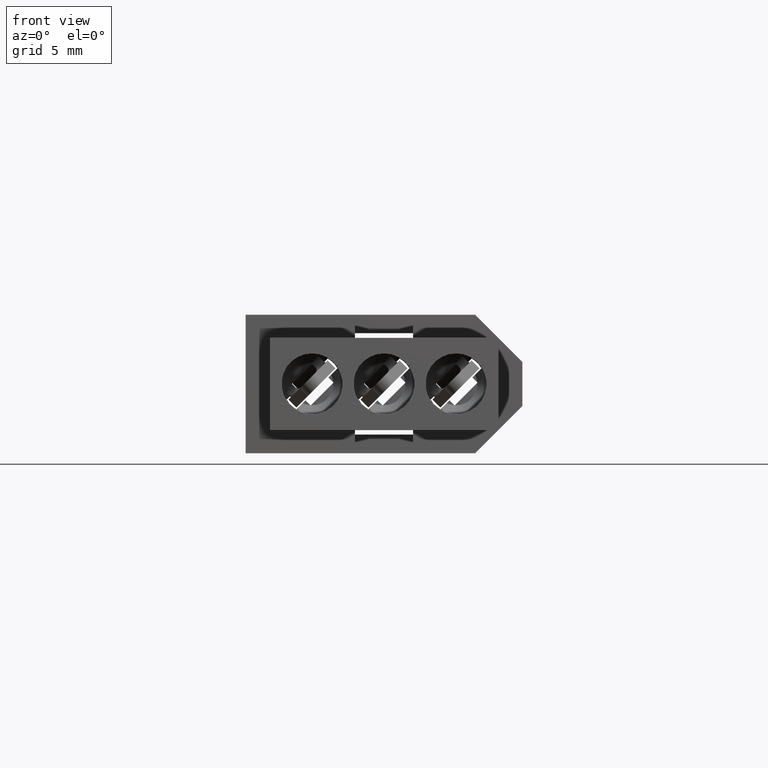
[diagram: clean part render]
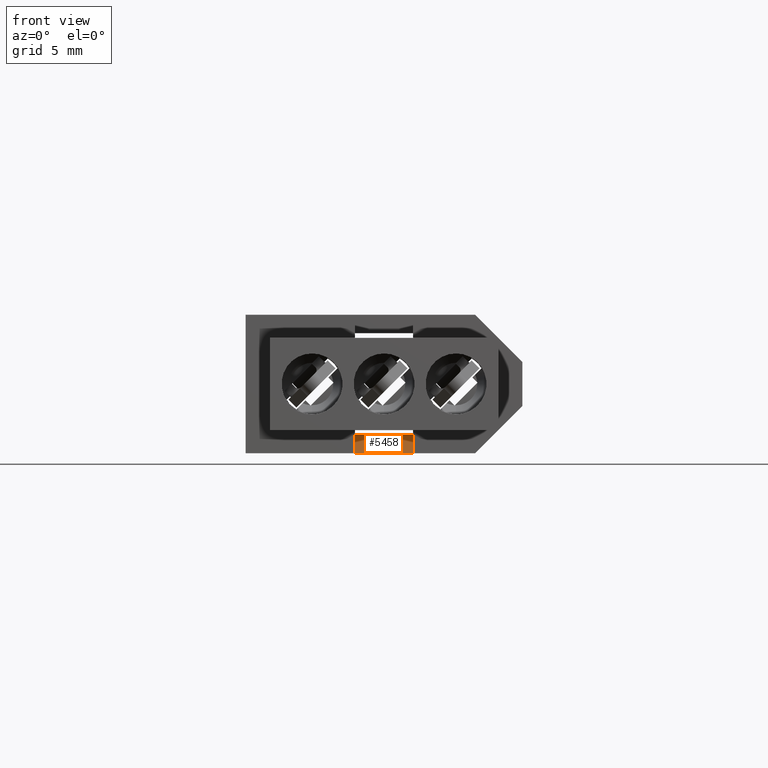
[diagram: same view with one face highlighted and labeled with its STEP entity id]
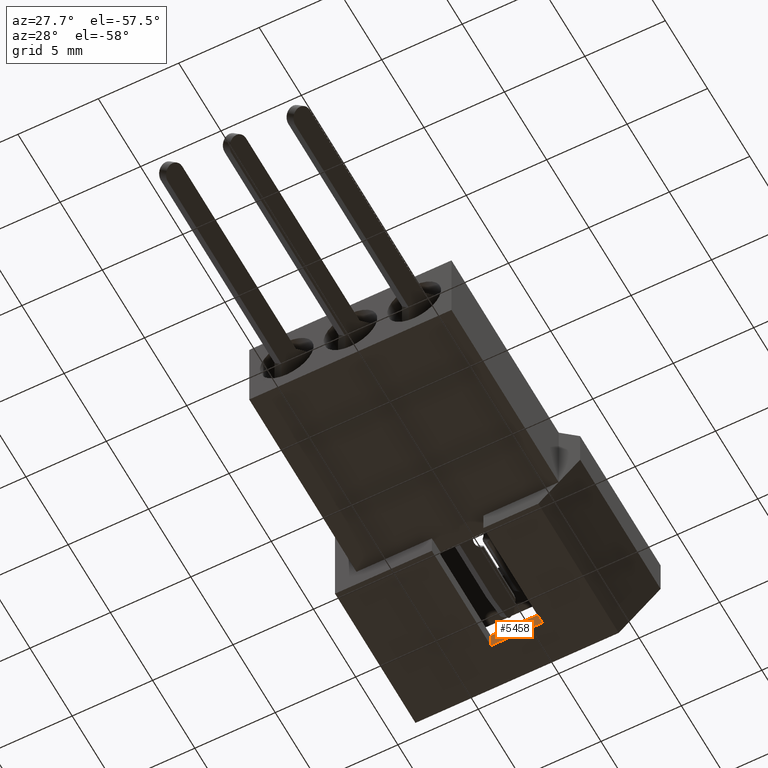
[diagram: same view with one face highlighted and labeled with its STEP entity id]
A machine part, front view. The second image highlights one B-rep face of the part: STEP entity #5458.
A second angle (auxiliary view) of the same face is appended — the face is thin or edge-on in the first view.
In plain terms, the highlighted planar face has unit normal (0, -1, 0).
Its self-contained STEP definition (entity closure, byte-faithful):
#11 = CARTESIAN_POINT ( 'NONE',  ( 5.562599999999996200, 6.984999999999999400, -3.809999999999999600 ) ) ;
#167 = EDGE_CURVE ( 'NONE', #2145, #5290, #358, .T. ) ;
#328 = CARTESIAN_POINT ( 'NONE',  ( 2.362199999999997400, 6.984999999999999400, -2.539999999999999600 ) ) ;
#358 = LINE ( 'NONE', #2122, #1166 ) ;
#381 = LINE ( 'NONE', #11, #2697 ) ;
#556 = VERTEX_POINT ( 'NONE', #6438 ) ;
#965 = DIRECTION ( 'NONE',  ( -0.0000000000000000000, -0.0000000000000000000, -1.000000000000000000 ) ) ;
#1103 = EDGE_CURVE ( 'NONE', #2145, #556, #4076, .T. ) ;
#1166 = VECTOR ( 'NONE', #2699, 1000.000000000000000 ) ;
#1219 = CARTESIAN_POINT ( 'NONE',  ( 5.562599999999996200, 6.984999999999999400, -3.809999999999999600 ) ) ;
#1386 = CARTESIAN_POINT ( 'NONE',  ( 5.562599999999996200, 6.984999999999999400, -2.794000000000000500 ) ) ;
#1940 = EDGE_LOOP ( 'NONE', ( #3968, #4157, #2496, #2518 ) ) ;
#1949 = VECTOR ( 'NONE', #965, 1000.000000000000000 ) ;
#2009 = VECTOR ( 'NONE', #5239, 1000.000000000000000 ) ;
#2041 = DIRECTION ( 'NONE',  ( 0.0000000000000000000, -0.0000000000000000000, -1.000000000000000000 ) ) ;
#2053 = PLANE ( 'NONE',  #5515 ) ;
#2122 = CARTESIAN_POINT ( 'NONE',  ( 5.562599999999996200, 6.984999999999999400, -2.539999999999999600 ) ) ;
#2145 = VERTEX_POINT ( 'NONE', #1386 ) ;
#2304 = CARTESIAN_POINT ( 'NONE',  ( -2.575109175245277700, 6.984999999999999400, -2.793999999999999600 ) ) ;
#2496 = ORIENTED_EDGE ( 'NONE', *, *, #4628, .F. ) ;
#2518 = ORIENTED_EDGE ( 'NONE', *, *, #167, .F. ) ;
#2594 = LINE ( 'NONE', #328, #1949 ) ;
#2600 = FACE_OUTER_BOUND ( 'NONE', #1940, .T. ) ;
#2697 = VECTOR ( 'NONE', #3059, 1000.000000000000000 ) ;
#2699 = DIRECTION ( 'NONE',  ( -0.0000000000000000000, -0.0000000000000000000, -1.000000000000000000 ) ) ;
#3059 = DIRECTION ( 'NONE',  ( -1.000000000000000000, 0.0000000000000000000, 0.0000000000000000000 ) ) ;
#3188 = CARTESIAN_POINT ( 'NONE',  ( 2.362199999999997400, 6.984999999999999400, -3.809999999999999600 ) ) ;
#3968 = ORIENTED_EDGE ( 'NONE', *, *, #1103, .T. ) ;
#4009 = CARTESIAN_POINT ( 'NONE',  ( 5.562599999999996200, 6.984999999999999400, -2.539999999999999600 ) ) ;
#4076 = LINE ( 'NONE', #2304, #2009 ) ;
#4083 = VERTEX_POINT ( 'NONE', #3188 ) ;
#4157 = ORIENTED_EDGE ( 'NONE', *, *, #5948, .T. ) ;
#4628 = EDGE_CURVE ( 'NONE', #5290, #4083, #381, .T. ) ;
#5052 = DIRECTION ( 'NONE',  ( 0.0000000000000000000, -1.000000000000000000, 0.0000000000000000000 ) ) ;
#5239 = DIRECTION ( 'NONE',  ( -1.000000000000000000, 0.0000000000000000000, 1.599442619241371200E-016 ) ) ;
#5290 = VERTEX_POINT ( 'NONE', #1219 ) ;
#5458 = ADVANCED_FACE ( 'NONE', ( #2600 ), #2053, .T. ) ;
#5515 = AXIS2_PLACEMENT_3D ( 'NONE', #4009, #5052, #2041 ) ;
#5948 = EDGE_CURVE ( 'NONE', #556, #4083, #2594, .T. ) ;
#6438 = CARTESIAN_POINT ( 'NONE',  ( 2.362199999999997400, 6.984999999999999400, -2.794000000000000500 ) ) ;